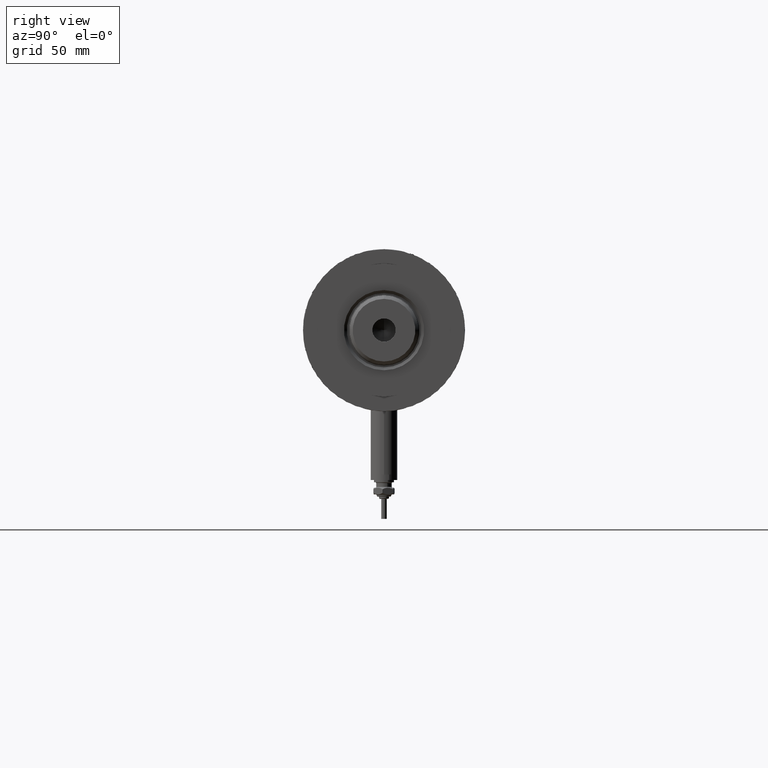
[diagram: clean part render]
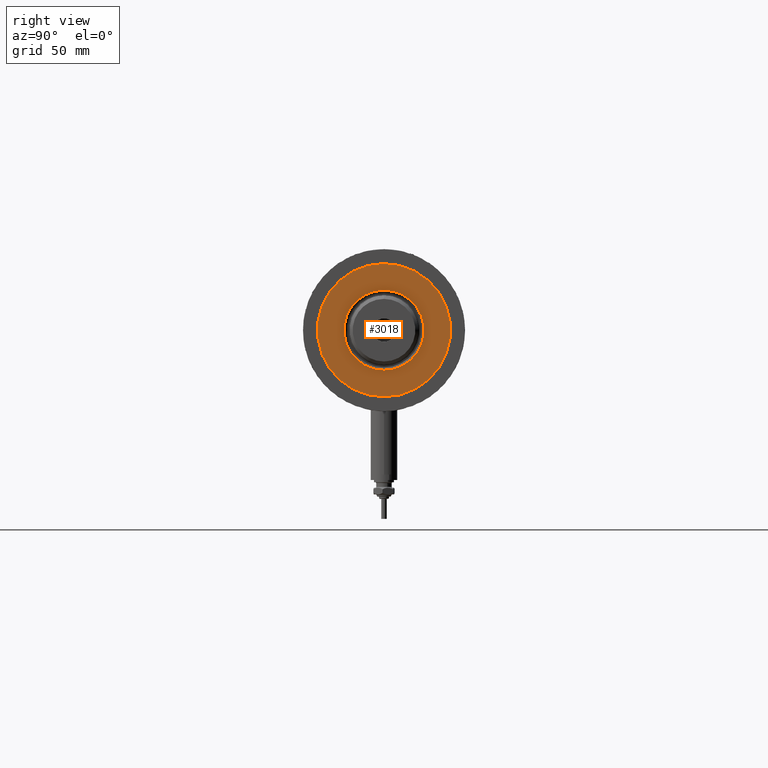
[diagram: same view with one face highlighted and labeled with its STEP entity id]
A machine part, right view. The second image highlights one B-rep face of the part: STEP entity #3018.
In plain terms, the highlighted planar face has unit normal (1, 0, -0).
Its self-contained STEP definition (entity closure, byte-faithful):
#100 = PLANE ( 'NONE',  #2126 ) ;
#320 = AXIS2_PLACEMENT_3D ( 'NONE', #3385, #5484, #362 ) ;
#362 = DIRECTION ( 'NONE',  ( 1.000000000000000000, 0.000000000000000000, 0.000000000000000000 ) ) ;
#438 = CARTESIAN_POINT ( 'NONE',  ( 0.000000000000000000, 0.000000000000000000, 50.19999999999999574 ) ) ;
#524 = AXIS2_PLACEMENT_3D ( 'NONE', #5756, #3028, #5096 ) ;
#716 = DIRECTION ( 'NONE',  ( -0.000000000000000000, -0.000000000000000000, -1.000000000000000000 ) ) ;
#747 = CARTESIAN_POINT ( 'NONE',  ( 0.000000000000000000, 0.000000000000000000, 50.19999999999999574 ) ) ;
#844 = FACE_OUTER_BOUND ( 'NONE', #5662, .T. ) ;
#1108 = DIRECTION ( 'NONE',  ( 1.000000000000000000, 0.000000000000000000, -0.000000000000000000 ) ) ;
#1256 = CARTESIAN_POINT ( 'NONE',  ( -30.00000000000000000, 0.000000000000000000, 50.19999999999999574 ) ) ;
#1293 = FACE_BOUND ( 'NONE', #4081, .T. ) ;
#1480 = DIRECTION ( 'NONE',  ( 0.000000000000000000, 0.000000000000000000, 1.000000000000000000 ) ) ;
#1755 = CIRCLE ( 'NONE', #5788, 18.04999999999996874 ) ;
#2126 = AXIS2_PLACEMENT_3D ( 'NONE', #4227, #1480, #1108 ) ;
#2295 = CARTESIAN_POINT ( 'NONE',  ( 30.00000000000000000, 3.673940397442058389E-15, 50.19999999999999574 ) ) ;
#2354 = AXIS2_PLACEMENT_3D ( 'NONE', #438, #4640, #3189 ) ;
#2445 = CIRCLE ( 'NONE', #2354, 18.04999999999996874 ) ;
#2543 = VERTEX_POINT ( 'NONE', #5238 ) ;
#2571 = ORIENTED_EDGE ( 'NONE', *, *, #3830, .T. ) ;
#2920 = CIRCLE ( 'NONE', #320, 30.00000000000000000 ) ;
#3018 = ADVANCED_FACE ( 'NONE', ( #1293, #844 ), #100, .T. ) ;
#3028 = DIRECTION ( 'NONE',  ( 0.000000000000000000, 0.000000000000000000, 1.000000000000000000 ) ) ;
#3162 = EDGE_CURVE ( 'NONE', #4892, #2543, #1755, .T. ) ;
#3189 = DIRECTION ( 'NONE',  ( 1.000000000000000000, 0.000000000000000000, 0.000000000000000000 ) ) ;
#3268 = ORIENTED_EDGE ( 'NONE', *, *, #3162, .T. ) ;
#3385 = CARTESIAN_POINT ( 'NONE',  ( 0.000000000000000000, 0.000000000000000000, 50.19999999999999574 ) ) ;
#3830 = EDGE_CURVE ( 'NONE', #4199, #3933, #5418, .T. ) ;
#3933 = VERTEX_POINT ( 'NONE', #1256 ) ;
#4081 = EDGE_LOOP ( 'NONE', ( #3268, #5286 ) ) ;
#4199 = VERTEX_POINT ( 'NONE', #2295 ) ;
#4227 = CARTESIAN_POINT ( 'NONE',  ( 0.000000000000000000, 0.000000000000000000, 50.19999999999999574 ) ) ;
#4436 = DIRECTION ( 'NONE',  ( 1.000000000000000000, 0.000000000000000000, 0.000000000000000000 ) ) ;
#4540 = EDGE_CURVE ( 'NONE', #3933, #4199, #2920, .T. ) ;
#4614 = EDGE_CURVE ( 'NONE', #2543, #4892, #2445, .T. ) ;
#4640 = DIRECTION ( 'NONE',  ( -0.000000000000000000, -0.000000000000000000, -1.000000000000000000 ) ) ;
#4850 = CARTESIAN_POINT ( 'NONE',  ( 18.04999999999996874, 0.000000000000000000, 50.19999999999999574 ) ) ;
#4892 = VERTEX_POINT ( 'NONE', #4850 ) ;
#5096 = DIRECTION ( 'NONE',  ( 1.000000000000000000, 0.000000000000000000, 0.000000000000000000 ) ) ;
#5232 = ORIENTED_EDGE ( 'NONE', *, *, #4540, .T. ) ;
#5238 = CARTESIAN_POINT ( 'NONE',  ( -18.04999999999996874, 2.210487472460968951E-15, 50.19999999999999574 ) ) ;
#5286 = ORIENTED_EDGE ( 'NONE', *, *, #4614, .T. ) ;
#5418 = CIRCLE ( 'NONE', #524, 30.00000000000000000 ) ;
#5484 = DIRECTION ( 'NONE',  ( 0.000000000000000000, 0.000000000000000000, 1.000000000000000000 ) ) ;
#5662 = EDGE_LOOP ( 'NONE', ( #5232, #2571 ) ) ;
#5756 = CARTESIAN_POINT ( 'NONE',  ( 0.000000000000000000, 0.000000000000000000, 50.19999999999999574 ) ) ;
#5788 = AXIS2_PLACEMENT_3D ( 'NONE', #747, #716, #4436 ) ;